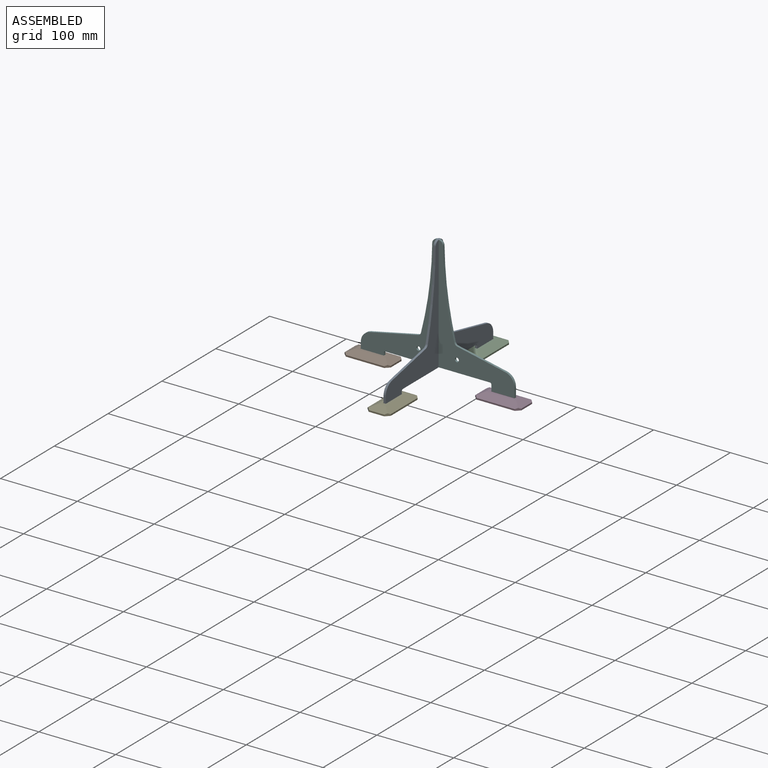
[diagram: assembled view]
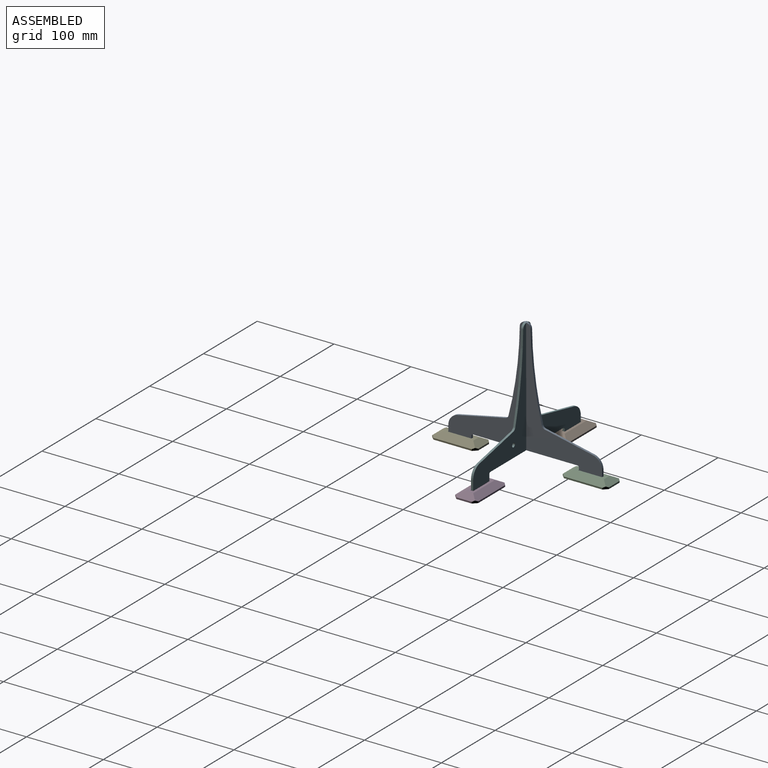
[diagram: assembled view, second angle]
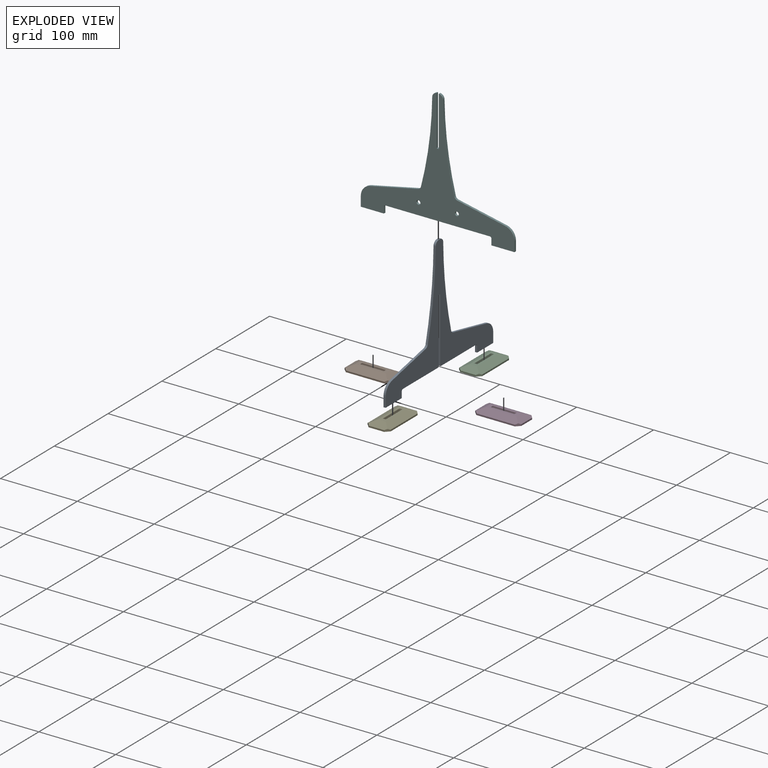
[diagram: exploded view]
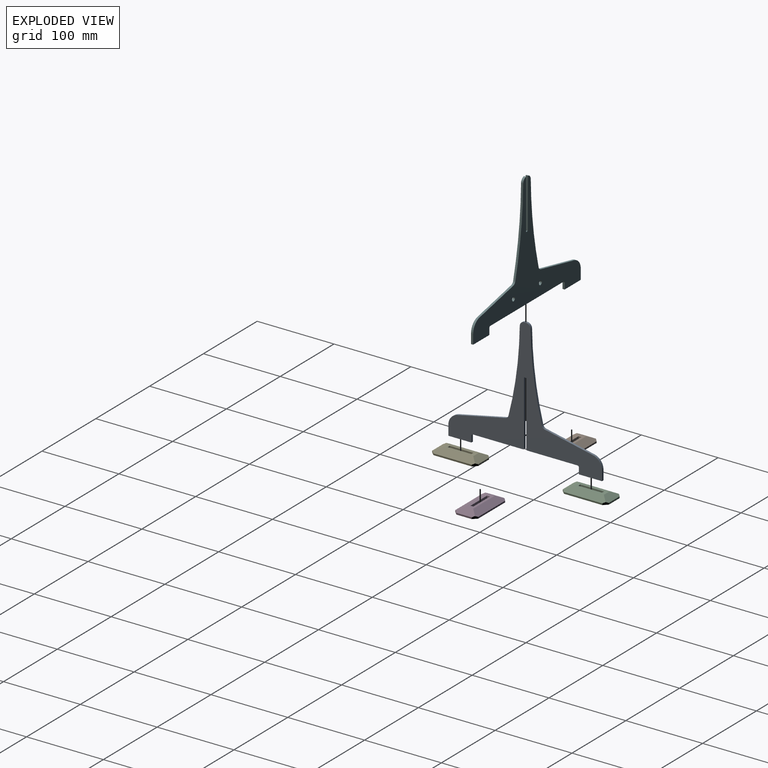
[diagram: exploded view, second angle]
ASSEMBLY  parts=6 mates=5
PART A: 34 faces, bbox 200x160x7 mm
  f0: plane 2.8x2.08mm, normal (0,-1,0), area 5.8mm2, adj f16,f17,f18,f19
  f1: cylinder r=460.93mm len=109.61mm, axis (0,0,-1), area 310.4mm2, adj f16,f17,f19,f23
  f2: plane 62.6x13.31mm, normal (0.21,-0.98,0), area 179.2mm2, adj f16,f17,f23,f25
  f3: plane 12.85x2.8mm, normal (1,0,0), area 36mm2, adj f4,f16,f17,f25
  f4: plane 30x2.8mm, normal (0,1,0), area 84mm2, adj f3,f5,f16,f17
  f5: plane 8x2.8mm, normal (-1,0,0), area 22.4mm2, adj f4,f16,f17,f27
  f6: plane 65.5x2.8mm, normal (0,1,0), area 183.4mm2, adj f16,f17,f21,f27
  f7: plane 84x2.8mm, normal (-1,0,0), area 235.2mm2, adj f8,f16,f17,f21
  f8: plane 3x2.8mm, normal (0,1,0), area 8.4mm2, adj f7,f9,f16,f17
  f9: plane 84x2.8mm, normal (1,0,0), area 235.2mm2, adj f8,f16,f17,f20
  f10: plane 65.5x2.8mm, normal (0,1,0), area 183.4mm2, adj f16,f17,f20,f26
  f11: plane 8x2.8mm, normal (1,0,0), area 22.4mm2, adj f12,f16,f17,f26
  f12: plane 30x2.8mm, normal (0,1,0), area 84mm2, adj f11,f13,f16,f17
  f13: plane 12.85x2.8mm, normal (-1,0,0), area 36mm2, adj f12,f16,f17,f24
  f14: plane 62.6x13.31mm, normal (-0.21,-0.98,0), area 179.2mm2, adj f16,f17,f22,f24
  f15: cylinder r=460.93mm len=109.61mm, axis (0,0,-1), area 310.4mm2, adj f16,f17,f18,f22
  f16: plane 200x160mm, normal (0,0,1), area 8119.3mm2, adj f0,f1,f2,f3,f4,f5,f6,f7
  f17: plane 200x160mm, normal (0,0,-1), area 8170mm2, adj f0,f1,f2,f3,f4,f5,f6,f7
  f18: cylinder r=6mm len=6mm, axis (0,0,-1), area 26.2mm2, adj f0,f15,f16,f17
  f19: cylinder r=6mm len=6mm, axis (0,0,-1), area 26.2mm2, adj f0,f1,f16,f17
  f20: cylinder r=1mm len=2.8mm, axis (0,0,-1), area 4.4mm2, adj f9,f10,f16,f17
  f21: cylinder r=1mm len=2.8mm, axis (0,0,-1), area 4.4mm2, adj f6,f7,f16,f17
  f22: cylinder r=5mm len=3.8mm, axis (0,0,-1), area 15.5mm2, adj f14,f15,f16,f17
  f23: cylinder r=5mm len=3.8mm, axis (0,0,-1), area 15.5mm2, adj f1,f2,f16,f17
  f24: cylinder r=15mm len=14.67mm, axis (0,0,-1), area 57.2mm2, adj f13,f14,f16,f17
  f25: cylinder r=15mm len=14.67mm, axis (0,0,-1), area 57.2mm2, adj f2,f3,f16,f17
  f26: cylinder r=2mm len=2.8mm, axis (0,0,1), area 8.8mm2, adj f10,f11,f16,f17
  f27: cylinder r=2mm len=2.8mm, axis (0,0,1), area 8.8mm2, adj f5,f6,f16,f17
  f28: cone r=2.4mm half-angle=6deg, axis (0,0,-1), area 61mm2, adj f16,f33
  f29: plane 3.8x3.8mm, normal (0,0,1), area 11.3mm2, adj f33
  f30: cone r=2.4mm half-angle=6deg, axis (0,0,-1), area 61mm2, adj f16,f32
  f31: plane 3.8x3.8mm, normal (0,0,1), area 11.3mm2, adj f32
  f32: cone r=1.9mm half-angle=45deg, axis (0,0,-1), area 10.8mm2, adj f30,f31
  f33: cone r=1.9mm half-angle=45deg, axis (0,0,-1), area 10.8mm2, adj f28,f29
PART B: 19 faces, bbox 60x30x7 mm
  f0: plane 50x2mm, normal (0,1,0), area 100mm2, adj f5,f11,f13,f15
  f1: plane 20x2mm, normal (-1,0,0), area 40mm2, adj f5,f13,f14,f16
  f2: plane 50x2mm, normal (0,-1,0), area 100mm2, adj f5,f12,f14,f18
  f3: plane 20x2mm, normal (1,0,0), area 40mm2, adj f5,f11,f12,f17
  f4: plane 40x10mm, normal (0,0,1), area 286.1mm2, adj f6,f7,f8,f9,f15,f16,f17,f18
  f5: plane 60x30mm, normal (0,0,-1), area 1750mm2, adj f0,f1,f2,f3,f11,f12,f13,f14
  f6: plane 30.8x5mm, normal (0,-1,0.07), area 152.6mm2, adj f4,f7,f9,f10
  f7: plane 5x3.7mm, normal (1,0,0.07), area 16.8mm2, adj f4,f6,f8,f10
  f8: plane 30.8x5mm, normal (0,1,0.07), area 152.6mm2, adj f4,f7,f9,f10
  f9: plane 5x3.7mm, normal (-1,0,0.07), area 16.8mm2, adj f4,f6,f8,f10
  f10: plane 30.1x3mm, normal (0,0,1), area 90.3mm2, adj f6,f7,f8,f9
  f11: plane 5x5mm, normal (0.71,0.71,0), area 18.6mm2, adj f0,f3,f5,f15,f17
  f12: plane 5x5mm, normal (0.71,-0.71,0), area 18.6mm2, adj f2,f3,f5,f17,f18
  f13: plane 5x5mm, normal (-0.71,0.71,0), area 18.6mm2, adj f0,f1,f5,f15,f16
  f14: plane 5x5mm, normal (-0.71,-0.71,0), area 18.6mm2, adj f1,f2,f5,f16,f18
  f15: plane 55x10mm, normal (0,0.45,0.89), area 545mm2, adj f0,f4,f11,f13,f16,f17
  f16: plane 25x10mm, normal (-0.45,0,0.89), area 209.6mm2, adj f1,f4,f13,f14,f15,f18
  f17: plane 25x10mm, normal (0.45,0,0.89), area 209.6mm2, adj f3,f4,f11,f12,f15,f18
  f18: plane 55x10mm, normal (0,-0.45,0.89), area 545mm2, adj f2,f4,f12,f14,f16,f17
PART C: same geometry as B
PART D: same geometry as B
PART E: same geometry as B
PART F: 26 faces, bbox 200x160x2.8 mm
  f0: plane 8x2.8mm, normal (1,0,0), area 22.4mm2, adj f13,f16,f17,f24
  f1: plane 136x2.8mm, normal (0,-1,0), area 380.8mm2, adj f16,f17,f24,f25
  f2: plane 8x2.8mm, normal (-1,0,0), area 22.4mm2, adj f3,f16,f17,f25
  f3: plane 30x2.8mm, normal (0,-1,0), area 84mm2, adj f2,f4,f16,f17
  f4: plane 12.85x2.8mm, normal (1,0,0), area 36mm2, adj f3,f16,f17,f23
  f5: plane 62.6x13.31mm, normal (0.21,0.98,0), area 179.2mm2, adj f16,f17,f21,f23
  f6: cylinder r=460.93mm len=109.62mm, axis (0,0,-1), area 310.4mm2, adj f16,f17,f19,f21
  f7: plane 65x2.8mm, normal (-1,0,0), area 182mm2, adj f8,f16,f17,f19
  f8: plane 3x2.8mm, normal (0,1,0), area 8.4mm2, adj f7,f9,f16,f17
  f9: plane 65x2.8mm, normal (1,0,0), area 182mm2, adj f8,f16,f17,f18
  f10: cylinder r=460.93mm len=109.62mm, axis (0,0,-1), area 310.4mm2, adj f16,f17,f18,f20
  f11: plane 62.6x13.31mm, normal (-0.21,0.98,0), area 179.2mm2, adj f16,f17,f20,f22
  f12: plane 12.85x2.8mm, normal (-1,0,0), area 36mm2, adj f13,f16,f17,f22
  f13: plane 30x2.8mm, normal (0,-1,0), area 84mm2, adj f0,f12,f16,f17
  f14: cylinder r=2.6mm len=5.2mm, axis (0,0,-1), area 45.7mm2, adj f16,f17
  f15: cylinder r=2.6mm len=5.2mm, axis (0,0,-1), area 45.7mm2, adj f16,f17
  f16: plane 200x160mm, normal (0,0,1), area 8188.2mm2, adj f0,f1,f2,f3,f4,f5,f6,f7
  f17: plane 200x160mm, normal (0,0,-1), area 8188.2mm2, adj f0,f1,f2,f3,f4,f5,f6,f7
  f18: cylinder r=6mm len=5.91mm, axis (0,0,-1), area 24.9mm2, adj f9,f10,f16,f17
  f19: cylinder r=6mm len=5.91mm, axis (0,0,-1), area 24.9mm2, adj f6,f7,f16,f17
  f20: cylinder r=5mm len=3.8mm, axis (0,0,-1), area 15.5mm2, adj f10,f11,f16,f17
  f21: cylinder r=5mm len=3.8mm, axis (0,0,-1), area 15.5mm2, adj f5,f6,f16,f17
  f22: cylinder r=15mm len=14.67mm, axis (0,0,-1), area 57.2mm2, adj f11,f12,f16,f17
  f23: cylinder r=15mm len=14.67mm, axis (0,0,-1), area 57.2mm2, adj f4,f5,f16,f17
  f24: cylinder r=2mm len=2.8mm, axis (0,0,1), area 8.8mm2, adj f0,f1,f16,f17
  f25: cylinder r=2mm len=2.8mm, axis (0,0,1), area 8.8mm2, adj f1,f2,f16,f17
PLACE A rot(axis=(-0.58,-0.58,0.58),120deg) t=(1.4,0,320)mm
PLACE B t=(79.57,-237.16,-12)mm
PLACE C rot(axis=(0,0,-1),90deg) t=(-237.16,-79.57,-12)mm
PLACE D t=(249.57,-237.16,-17)mm
PLACE E rot(axis=(0,0,-1),90deg) t=(-237.16,-249.57,-12)mm
PLACE F rot(axis=(1,0,0),90deg) t=(0,1.4,-10)mm
MATE fastened B.f10 <-> F.f13  axis (0,0,1) through (-85,0,-10)mm
MATE fastened D.f4 <-> F.f3  axis (0,0,1) through (85,0,-10)mm
MATE fastened C.f10 <-> A.f4  axis (0,0,1) through (0,85,-10)mm
MATE fastened A.f8 <-> F.f8  axis (0,0,-1) through (0,0,85)mm
MATE fastened E.f10 <-> A.f12  axis (0,0,1) through (0,-85,-10)mm
